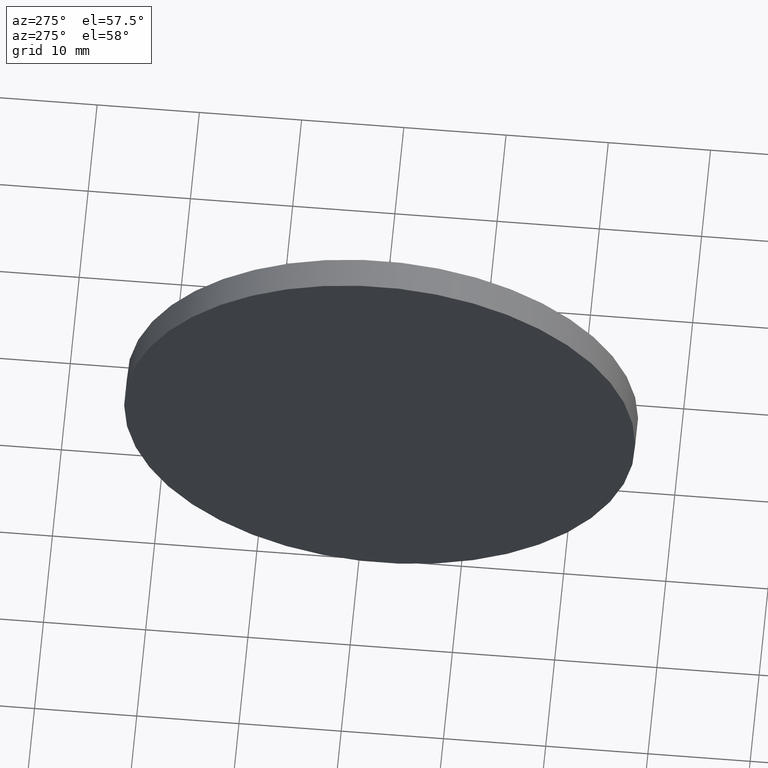
[diagram: clean part render]
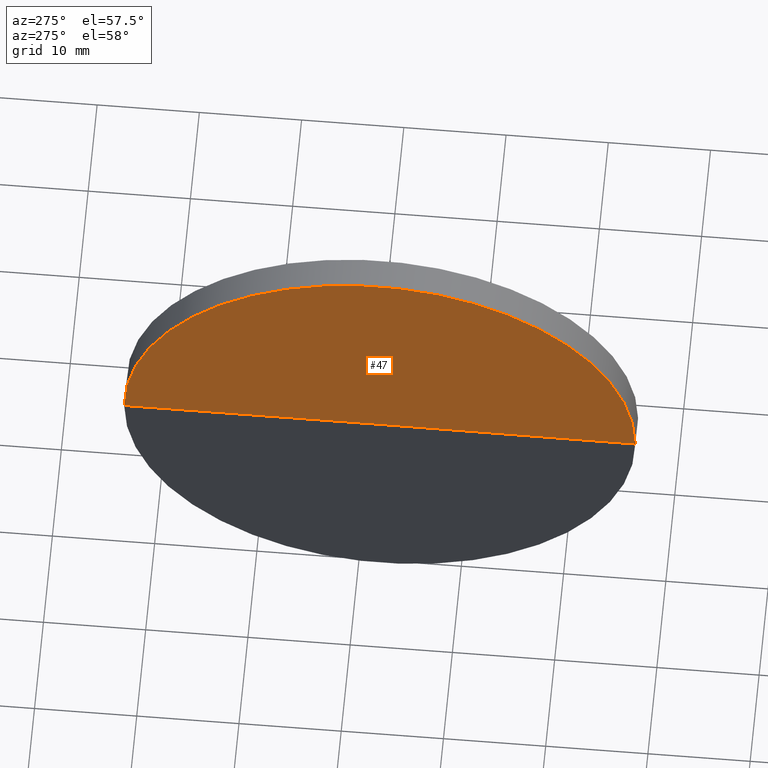
[diagram: same view with one face highlighted and labeled with its STEP entity id]
A machine part, auxiliary view. The second image highlights one B-rep face of the part: STEP entity #47.
In plain terms, the highlighted conical surface has half-angle 89.889 deg.
Its self-contained STEP definition (entity closure, byte-faithful):
#7 = DIRECTION ( 'NONE',  ( -0.001942444661691946700, -0.9999981134525887100, 0.0000000000000000000 ) ) ;
#22 = LINE ( 'NONE', #40, #177 ) ;
#37 = VECTOR ( 'NONE', #42, 1000.000000000000100 ) ;
#39 = EDGE_CURVE ( 'NONE', #172, #67, #22, .T. ) ;
#40 = CARTESIAN_POINT ( 'NONE',  ( 559.1327683636350200, 142.9045088534294300, 3.061611221982758700E-015 ) ) ;
#42 = DIRECTION ( 'NONE',  ( -0.003884881994357643300, -0.9999924538174724800, 0.0000000000000000000 ) ) ;
#47 = ADVANCED_FACE ( 'NONE', ( #57 ), #124, .F. ) ;
#49 = EDGE_LOOP ( 'NONE', ( #82, #164, #144 ) ) ;
#57 = FACE_OUTER_BOUND ( 'NONE', #49, .T. ) ;
#67 = VERTEX_POINT ( 'NONE', #190 ) ;
#73 = AXIS2_PLACEMENT_3D ( 'NONE', #111, #99, #7 ) ;
#77 = CIRCLE ( 'NONE', #183, 24.99995283631469100 ) ;
#82 = ORIENTED_EDGE ( 'NONE', *, *, #39, .F. ) ;
#93 = EDGE_CURVE ( 'NONE', #172, #135, #115, .T. ) ;
#99 = DIRECTION ( 'NONE',  ( -0.9999981134525887100, 0.001942444661693687000, -0.0000000000000000000 ) ) ;
#101 = DIRECTION ( 'NONE',  ( 1.833385873672988000E-015, 1.000000000000000000, 1.224644488793104600E-016 ) ) ;
#111 = CARTESIAN_POINT ( 'NONE',  ( 559.0842073387056000, 117.9046031807110400, 0.0000000000000000000 ) ) ;
#115 = LINE ( 'NONE', #167, #37 ) ;
#124 = CONICAL_SURFACE ( 'NONE', #73, 24.99995283631469100, 1.568853880911699200 ) ;
#128 = CARTESIAN_POINT ( 'NONE',  ( 559.0842073387056000, 117.9046031807110400, 0.0000000000000000000 ) ) ;
#135 = VERTEX_POINT ( 'NONE', #188 ) ;
#144 = ORIENTED_EDGE ( 'NONE', *, *, #149, .T. ) ;
#149 = EDGE_CURVE ( 'NONE', #135, #67, #77, .T. ) ;
#154 = DIRECTION ( 'NONE',  ( -0.001942444661691946700, -0.9999981134525887100, 0.0000000000000000000 ) ) ;
#164 = ORIENTED_EDGE ( 'NONE', *, *, #93, .T. ) ;
#167 = CARTESIAN_POINT ( 'NONE',  ( 559.0356463137761700, 92.90469750799265100, 0.0000000000000000000 ) ) ;
#172 = VERTEX_POINT ( 'NONE', #174 ) ;
#174 = CARTESIAN_POINT ( 'NONE',  ( 559.1327683636350200, 117.9045088534294300, 0.0000000000000000000 ) ) ;
#176 = DIRECTION ( 'NONE',  ( -0.9999981134525887100, 0.001942444661693687000, -0.0000000000000000000 ) ) ;
#177 = VECTOR ( 'NONE', #101, 1000.000000000000000 ) ;
#183 = AXIS2_PLACEMENT_3D ( 'NONE', #128, #176, #154 ) ;
#188 = CARTESIAN_POINT ( 'NONE',  ( 559.0356463137761700, 92.90469750799265100, 3.061611221982758700E-015 ) ) ;
#190 = CARTESIAN_POINT ( 'NONE',  ( 559.1327683636350200, 142.9045088534294300, 0.0000000000000000000 ) ) ;